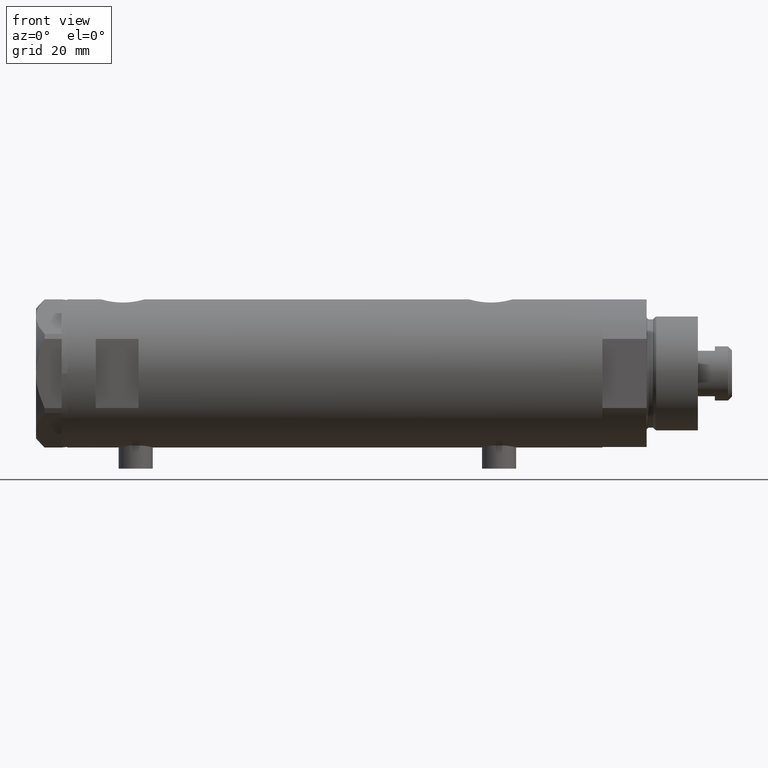
[diagram: clean part render]
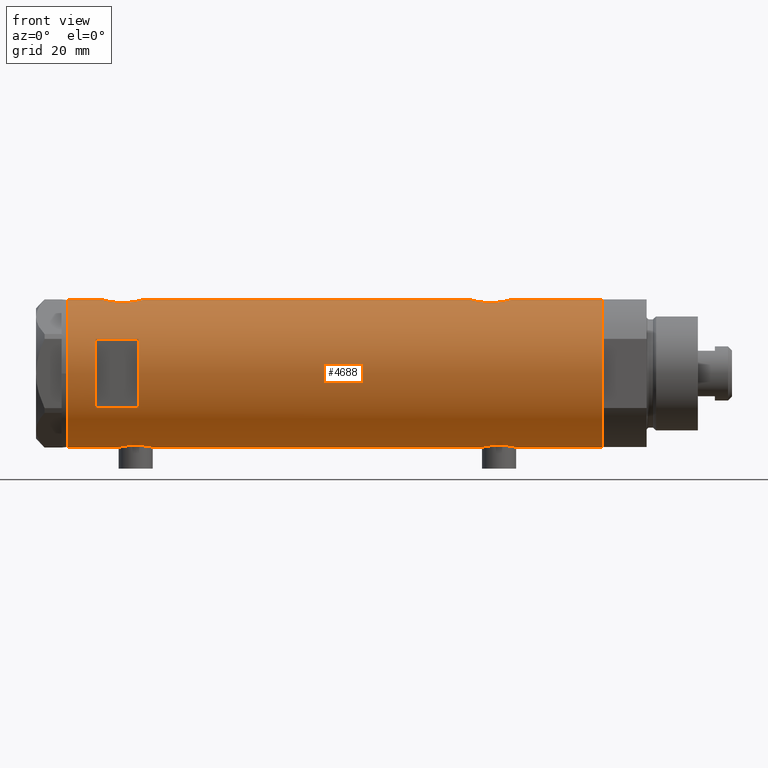
[diagram: same view with one face highlighted and labeled with its STEP entity id]
A machine part, front view. The second image highlights one B-rep face of the part: STEP entity #4688.
In plain terms, the highlighted cylindrical surface (partial cylindrical patch) has radius 26 mm, axis along (-1, -0, 0).
Its self-contained STEP definition (entity closure, byte-faithful):
#10 = EDGE_CURVE ( 'NONE', #3215, #1764, #277, .T. ) ;
#42 = CARTESIAN_POINT ( 'NONE',  ( 0.000000000000000000, 0.000000000000000000, 83.95000000000000284 ) ) ;
#45 = CARTESIAN_POINT ( 'NONE',  ( -25.52274351135604746, -4.960534548086194206, 73.75751745340734544 ) ) ;
#56 = VERTEX_POINT ( 'NONE', #929 ) ;
#70 = CARTESIAN_POINT ( 'NONE',  ( -26.00000000000000355, -8.503928565788675107E-16, -51.39999999999999858 ) ) ;
#90 = CARTESIAN_POINT ( 'NONE',  ( -26.00000000000000355, 3.184081677783118585E-15, 93.95000000000000284 ) ) ;
#173 = CARTESIAN_POINT ( 'NONE',  ( 24.96672817551788270, -7.257586026187393458, -52.79615800278703119 ) ) ;
#192 = CARTESIAN_POINT ( 'NONE',  ( 25.78993643992928853, -3.329561377902403585, 81.18821560278736627 ) ) ;
#200 = CARTESIAN_POINT ( 'NONE',  ( 25.72873412774685775, -3.768477344985552424, -48.24712539855535454 ) ) ;
#217 = CARTESIAN_POINT ( 'NONE',  ( 25.52449676677459678, -4.953491517965891155, 68.81325508665931068 ) ) ;
#224 = CARTESIAN_POINT ( 'NONE',  ( 25.52449676677459678, -4.953491517965876945, -60.38674491334074190 ) ) ;
#248 = CARTESIAN_POINT ( 'NONE',  ( 25.59500516383205948, -4.575229401795803952, 68.50212244934583339 ) ) ;
#253 = CARTESIAN_POINT ( 'NONE',  ( 25.78993643992928853, -3.329561377902402697, -48.01178439721262947 ) ) ;
#277 = B_SPLINE_CURVE_WITH_KNOTS ( 'NONE', 3,
 ( #342, #3089, #4304, #1519, #5133, #4398, #363, #1199, #1172, #3163, #3535, #4378, #4327, #2351, #1957, #701, #3138, #5156, #4752, #1541, #4703, #414, #1144, #2748, #729, #4804, #3557, #2372, #1566, #3191, #1937, #2300, #3904, #1592, #3979, #1120, #3958, #779, #2400, #2798, #804, #387 ),
 .UNSPECIFIED., .F., .F.,
 ( 4, 2, 2, 2, 2, 2, 2, 2, 2, 2, 2, 2, 2, 2, 2, 2, 2, 2, 2, 2, 4 ),
 ( 0.01961238453869445023, 0.02083783025472770584, 0.02206327597076096492, 0.02267599882877758405, 0.02328872168679420665, 0.02451416740282742757, 0.02573961311886065889, 0.02696505883489389022, 0.02819050455092712501, 0.02880322740894373373, 0.02941595026696033899, 0.03064139598299355643, 0.03186684169902676694, 0.03309228741505997745, 0.03370501027307658271, 0.03431773313109319490, 0.03493045598910980015, 0.03554317884712640541, 0.03676862456315962979, 0.03799407027919285418, 0.03921951599522608550 ),
 .UNSPECIFIED. ) ;
#281 = CARTESIAN_POINT ( 'NONE',  ( 24.89478872726946079, -7.499966281647702182, -54.50178149365218161 ) ) ;
#288 = EDGE_CURVE ( 'NONE', #3318, #640, #1928, .T. ) ;
#298 = CARTESIAN_POINT ( 'NONE',  ( 24.89475831528844907, -7.500067228253129770, 73.95662571746466085 ) ) ;
#308 = DIRECTION ( 'NONE',  ( 0.000000000000000000, 0.000000000000000000, 1.000000000000000000 ) ) ;
#318 = FACE_OUTER_BOUND ( 'NONE', #1875, .T. ) ;
#342 = CARTESIAN_POINT ( 'NONE',  ( -26.00000000000000355, 3.184077527250253257E-15, -63.90000000000001279 ) ) ;
#363 = CARTESIAN_POINT ( 'NONE',  ( -25.85288666140180069, -2.767917424206677968, -63.25742209989670783 ) ) ;
#378 = CARTESIAN_POINT ( 'NONE',  ( -25.81160981652327635, -3.129523010631801494, 64.53607026277929037 ) ) ;
#387 = CARTESIAN_POINT ( 'NONE',  ( -26.00000000000000355, -8.503928565788675107E-16, -51.39999999999999858 ) ) ;
#403 = CARTESIAN_POINT ( 'NONE',  ( -25.95218276861526263, -1.627663810194431404, 63.90149019612397296 ) ) ;
#410 = AXIS2_PLACEMENT_3D ( 'NONE', #42, #1258, #4042 ) ;
#414 = CARTESIAN_POINT ( 'NONE',  ( -25.23758491649666880, -6.250144606721711682, -57.23988300428195686 ) ) ;
#430 = EDGE_CURVE ( 'NONE', #2763, #4208, #1970, .T. ) ;
#431 = CARTESIAN_POINT ( 'NONE',  ( -25.38662204309616399, -5.616507264474307703, 72.72199377719323365 ) ) ;
#449 = CARTESIAN_POINT ( 'NONE',  ( 26.00000000000000355, 0.000000000000000000, -93.95000000000000284 ) ) ;
#454 = CARTESIAN_POINT ( 'NONE',  ( -25.72076778631230098, -3.815670258243490043, 64.98312189468120437 ) ) ;
#458 = CARTESIAN_POINT ( 'NONE',  ( 26.00000000000000355, 0.000000000000000000, 93.95000000000000284 ) ) ;
#505 = AXIS2_PLACEMENT_3D ( 'NONE', #3214, #3984, #4382 ) ;
#556 = CARTESIAN_POINT ( 'NONE',  ( 25.59665538672496155, -4.580438224580676732, -48.79110872287609624 ) ) ;
#578 = CARTESIAN_POINT ( 'NONE',  ( 25.89059789403177447, -2.425642437452259603, 81.56377447242300605 ) ) ;
#581 = ORIENTED_EDGE ( 'NONE', *, *, #966, .F. ) ;
#583 = VECTOR ( 'NONE', #2834, 1000.000000000000000 ) ;
#584 = CARTESIAN_POINT ( 'NONE',  ( 25.98599366666249466, -0.9828433289544072915, -47.29811598276526752 ) ) ;
#601 = CARTESIAN_POINT ( 'NONE',  ( 26.00000000000000355, 0.000000000000000000, -93.95000000000000284 ) ) ;
#612 = CARTESIAN_POINT ( 'NONE',  ( -25.85385060263650914, -2.778671585188189574, 75.56314451304240265 ) ) ;
#640 = VERTEX_POINT ( 'NONE', #4813 ) ;
#656 = CARTESIAN_POINT ( 'NONE',  ( 25.00829008792691965, -7.115081037226463678, 76.87301003740822125 ) ) ;
#662 = CARTESIAN_POINT ( 'NONE',  ( 25.31004928890824957, -5.952041021437452173, -50.18019400116494211 ) ) ;
#683 = CARTESIAN_POINT ( 'NONE',  ( 24.91324908721446008, -7.438459228814657820, 75.44017499374190550 ) ) ;
#684 = EDGE_CURVE ( 'NONE', #640, #56, #4696, .T. ) ;
#701 = CARTESIAN_POINT ( 'NONE',  ( -25.31551596256916170, -5.928819821281962277, -59.67011491904084153 ) ) ;
#707 = CARTESIAN_POINT ( 'NONE',  ( 25.11342038069226845, -6.734617143597199984, 77.78770695790493050 ) ) ;
#709 = ORIENTED_EDGE ( 'NONE', *, *, #430, .F. ) ;
#729 = CARTESIAN_POINT ( 'NONE',  ( -25.31538696791482224, -5.929326713517960812, -55.63203367791898302 ) ) ;
#776 = CARTESIAN_POINT ( 'NONE',  ( 26.00000000000000355, -3.975028449552882818E-20, 81.94999999999998863 ) ) ;
#779 = CARTESIAN_POINT ( 'NONE',  ( -25.92364458890659762, -2.026637113504532905, -51.72369009308527410 ) ) ;
#782 = DIRECTION ( 'NONE',  ( 1.000000000000000000, 0.000000000000000000, 0.000000000000000000 ) ) ;
#794 = CARTESIAN_POINT ( 'NONE',  ( -25.52190669608696183, -4.968444991210429151, 66.13658907807516130 ) ) ;
#804 = CARTESIAN_POINT ( 'NONE',  ( -26.00000000000000355, -0.4144764235405725139, -51.39999999999999147 ) ) ;
#819 = CARTESIAN_POINT ( 'NONE',  ( -25.24765475072630139, -6.209883762780004091, 70.76678184355101564 ) ) ;
#821 = EDGE_CURVE ( 'NONE', #2577, #1086, #3909, .T. ) ;
#835 = VECTOR ( 'NONE', #1068, 1000.000000000000000 ) ;
#876 = VECTOR ( 'NONE', #4142, 1000.000000000000000 ) ;
#916 = VECTOR ( 'NONE', #4828, 1000.000000000000000 ) ;
#921 = CARTESIAN_POINT ( 'NONE',  ( 26.00000000000000355, 0.000000000000000000, -93.95000000000000284 ) ) ;
#924 = CARTESIAN_POINT ( 'NONE',  ( -25.57167894663063024, -4.701762988462085069, 74.07280450192421029 ) ) ;
#929 = CARTESIAN_POINT ( 'NONE',  ( -12.12435565298214080, -23.00000000000000355, 83.95000000000000284 ) ) ;
#966 = EDGE_CURVE ( 'NONE', #2466, #4871, #4467, .T. ) ;
#972 = CARTESIAN_POINT ( 'NONE',  ( 25.38109653984943748, -5.641393955635659374, -49.80180907551250158 ) ) ;
#996 = VERTEX_POINT ( 'NONE', #2732 ) ;
#1021 = CARTESIAN_POINT ( 'NONE',  ( -12.12435565298214080, -23.00000000000000355, 68.94999999999998863 ) ) ;
#1023 = CARTESIAN_POINT ( 'NONE',  ( 25.62983961939740496, -4.376509667782460866, 68.35441500957041683 ) ) ;
#1036 = CARTESIAN_POINT ( 'NONE',  ( 26.00000000000000355, -3.975025925197986111E-20, -47.25000000000000000 ) ) ;
#1043 = ORIENTED_EDGE ( 'NONE', *, *, #3358, .F. ) ;
#1044 = CARTESIAN_POINT ( 'NONE',  ( 25.48871066912673911, -5.133852125086511897, 68.97709693256024366 ) ) ;
#1046 = VECTOR ( 'NONE', #2538, 1000.000000000000000 ) ;
#1068 = DIRECTION ( 'NONE',  ( 0.000000000000000000, 0.000000000000000000, 1.000000000000000000 ) ) ;
#1086 = VERTEX_POINT ( 'NONE', #2382 ) ;
#1104 = EDGE_CURVE ( 'NONE', #996, #3020, #1837, .T. ) ;
#1120 = CARTESIAN_POINT ( 'NONE',  ( -25.81232680456766815, -3.137210741985122286, -52.22886342778421209 ) ) ;
#1144 = CARTESIAN_POINT ( 'NONE',  ( -25.24765475072630139, -6.209883762780014749, -56.83321815644903552 ) ) ;
#1172 = CARTESIAN_POINT ( 'NONE',  ( -25.78943824387522454, -3.306687742228910487, -62.95754138783468790 ) ) ;
#1191 = CARTESIAN_POINT ( 'NONE',  ( -25.25025691038242215, -6.198787452305312584, 69.12558834604207902 ) ) ;
#1195 = CARTESIAN_POINT ( 'NONE',  ( 25.11243836838846022, -6.738202653785830165, 71.12043350844841427 ) ) ;
#1199 = CARTESIAN_POINT ( 'NONE',  ( -25.81160981652327635, -3.129523010631801938, -63.06392973722074657 ) ) ;
#1211 = CARTESIAN_POINT ( 'NONE',  ( -25.23763877699557412, -6.249927116972443741, 69.74164472334535958 ) ) ;
#1239 = VECTOR ( 'NONE', #308, 1000.000000000000000 ) ;
#1249 = LINE ( 'NONE', #2060, #916 ) ;
#1258 = DIRECTION ( 'NONE',  ( -0.000000000000000000, 0.000000000000000000, -1.000000000000000000 ) ) ;
#1259 = EDGE_CURVE ( 'NONE', #2577, #2739, #4436, .T. ) ;
#1288 = CARTESIAN_POINT ( 'NONE',  ( -25.99036913299955742, -0.8159609457881448202, 63.73968856968108554 ) ) ;
#1347 = CARTESIAN_POINT ( 'NONE',  ( 24.89475831528845262, -7.500067228253130658, -55.24337428253536331 ) ) ;
#1355 = CARTESIAN_POINT ( 'NONE',  ( 0.000000000000000000, 0.000000000000000000, 93.95000000000000284 ) ) ;
#1391 = VERTEX_POINT ( 'NONE', #1021 ) ;
#1395 = CARTESIAN_POINT ( 'NONE',  ( 24.96970063328116751, -7.247045583599693863, -56.69719214854801947 ) ) ;
#1436 = ORIENTED_EDGE ( 'NONE', *, *, #1654, .F. ) ;
#1496 = CARTESIAN_POINT ( 'NONE',  ( 24.96970063328117462, -7.247045583599690310, 72.50280785145199047 ) ) ;
#1519 = CARTESIAN_POINT ( 'NONE',  ( -25.95218276861526618, -1.627663810194431626, -63.69850980387604977 ) ) ;
#1531 = CARTESIAN_POINT ( 'NONE',  ( 26.00000000000000355, 3.343657407582877388E-16, -62.25000000000000000 ) ) ;
#1541 = CARTESIAN_POINT ( 'NONE',  ( -25.24022290516698419, -6.239518219915434649, -58.06597215938433720 ) ) ;
#1551 = CARTESIAN_POINT ( 'NONE',  ( -26.00000000000000355, 1.227111019500118713E-15, 76.20000000000001705 ) ) ;
#1562 = EDGE_CURVE ( 'NONE', #1391, #3318, #4018, .T. ) ;
#1566 = CARTESIAN_POINT ( 'NONE',  ( -25.52274351135604391, -4.960534548086211970, -53.84248254659268440 ) ) ;
#1580 = CARTESIAN_POINT ( 'NONE',  ( -25.31551596256916525, -5.928819821281963165, 67.92988508095919542 ) ) ;
#1587 = CARTESIAN_POINT ( 'NONE',  ( 25.78902964777117290, -3.336582972512956768, 67.71524159542266830 ) ) ;
#1592 = CARTESIAN_POINT ( 'NONE',  ( -25.71926338401910428, -3.813768894920914754, -52.69427860166185695 ) ) ;
#1606 = CARTESIAN_POINT ( 'NONE',  ( -25.23758491649666524, -6.250144606721703688, 70.36011699571805877 ) ) ;
#1654 = EDGE_CURVE ( 'NONE', #1764, #2763, #1249, .T. ) ;
#1657 = CARTESIAN_POINT ( 'NONE',  ( -25.87202607293667000, -2.583404329177993120, 64.25526333145488422 ) ) ;
#1711 = CARTESIAN_POINT ( 'NONE',  ( -25.59645788645699227, -4.565358797148518555, 74.22330529203480864 ) ) ;
#1764 = VERTEX_POINT ( 'NONE', #70 ) ;
#1766 = CARTESIAN_POINT ( 'NONE',  ( 24.90947356773249766, -7.451722770779341865, -55.73190841828151321 ) ) ;
#1767 = CARTESIAN_POINT ( 'NONE',  ( -25.99999999999999289, -0.4144764235405741237, 76.19999999999998863 ) ) ;
#1789 = CARTESIAN_POINT ( 'NONE',  ( 25.27534302296961854, -6.097250460344746159, -50.37590386902925843 ) ) ;
#1808 = CARTESIAN_POINT ( 'NONE',  ( 26.00000000000000355, -2.747580718823405516E-15, 66.95000000000000284 ) ) ;
#1815 = CARTESIAN_POINT ( 'NONE',  ( 25.88994451797511331, -2.432613607265599498, -61.86140968713201005 ) ) ;
#1836 = CARTESIAN_POINT ( 'NONE',  ( 25.72912156655466376, -3.765948295762494791, 67.94557024600780437 ) ) ;
#1837 = CIRCLE ( 'NONE', #3257, 26.00000000000000355 ) ;
#1844 = CARTESIAN_POINT ( 'NONE',  ( 25.17393786935995692, -6.507882790539420981, -58.51037333344031310 ) ) ;
#1875 = EDGE_LOOP ( 'NONE', ( #1043, #2675, #2036, #581, #2440, #5031, #4964, #3689, #2540, #709, #1436, #4692 ) ) ;
#1914 = FACE_BOUND ( 'NONE', #5118, .T. ) ;
#1917 = CARTESIAN_POINT ( 'NONE',  ( 25.31004928890825312, -5.952041021437449508, 79.01980599883506784 ) ) ;
#1928 = LINE ( 'NONE', #3155, #1239 ) ;
#1937 = CARTESIAN_POINT ( 'NONE',  ( -25.59645788645699582, -4.565358797148525660, -53.37669470796521409 ) ) ;
#1957 = CARTESIAN_POINT ( 'NONE',  ( -25.38744165544137488, -5.612847683295917989, -60.42987583238479488 ) ) ;
#1970 = B_SPLINE_CURVE_WITH_KNOTS ( 'NONE', 3,
 ( #3996, #2076, #1288, #403, #4846, #1657, #3972, #378, #1973, #454, #3573, #4415, #794, #5196, #3648, #1580, #3183, #4796, #1191, #2791, #1211, #1606, #819, #2417, #4021, #431, #2025, #3623, #45, #924, #1711, #2523, #2210, #2947, #3365, #3809, #612, #2604, #4532, #2156, #1767, #4100 ),
 .UNSPECIFIED., .F., .F.,
 ( 4, 2, 2, 2, 2, 2, 2, 2, 2, 2, 2, 2, 2, 2, 2, 2, 2, 2, 2, 2, 4 ),
 ( 0.01961238453869444676, 0.02083783025472769543, 0.02206327597076094410, 0.02267599882877755976, 0.02328872168679417543, 0.02451416740282743104, 0.02573961311886067971, 0.02696505883489393532, 0.02819050455092719093, 0.02880322740894379618, 0.02941595026696040144, 0.03064139598299361195, 0.03186684169902682245, 0.03309228741506003296, 0.03370501027307663822, 0.03431773313109324347, 0.03493045598910984872, 0.03554317884712646092, 0.03676862456315967143, 0.03799407027919288193, 0.03921951599522609938 ),
 .UNSPECIFIED. ) ;
#1973 = CARTESIAN_POINT ( 'NONE',  ( -25.78943824387523520, -3.306687742228914484, 64.64245861216537037 ) ) ;
#2008 = EDGE_CURVE ( 'NONE', #4208, #4309, #3636, .T. ) ;
#2022 = ORIENTED_EDGE ( 'NONE', *, *, #684, .F. ) ;
#2025 = CARTESIAN_POINT ( 'NONE',  ( -25.42883439573799720, -5.424786127492320809, 73.08081457260909986 ) ) ;
#2036 = ORIENTED_EDGE ( 'NONE', *, *, #4778, .T. ) ;
#2060 = CARTESIAN_POINT ( 'NONE',  ( -26.00000000000000355, 3.184081677783118585E-15, -93.95000000000000284 ) ) ;
#2076 = CARTESIAN_POINT ( 'NONE',  ( -26.00000000000001066, -0.4086738135806035066, 63.70000000000000995 ) ) ;
#2077 = ORIENTED_EDGE ( 'NONE', *, *, #288, .F. ) ;
#2154 = CARTESIAN_POINT ( 'NONE',  ( 25.00829008792691255, -7.115081037226466343, -52.32698996259181001 ) ) ;
#2156 = CARTESIAN_POINT ( 'NONE',  ( -25.99009752186832856, -0.8230863847107351416, 76.15917071406683192 ) ) ;
#2209 = CARTESIAN_POINT ( 'NONE',  ( 25.30930190055640239, -5.959775463244125326, -59.32974043478028392 ) ) ;
#2210 = CARTESIAN_POINT ( 'NONE',  ( -25.67063510297210271, -4.128418051804843003, 74.64682575271267240 ) ) ;
#2226 = CARTESIAN_POINT ( 'NONE',  ( 24.96672817551789691, -7.257586026187390793, 76.40384199721299296 ) ) ;
#2227 = VECTOR ( 'NONE', #2521, 1000.000000000000000 ) ;
#2232 = LINE ( 'NONE', #921, #2227 ) ;
#2257 = CARTESIAN_POINT ( 'NONE',  ( 25.03461301890608226, -7.019803056070506031, 71.79816816893104203 ) ) ;
#2261 = CARTESIAN_POINT ( 'NONE',  ( 26.00000000000000355, 0.000000000000000000, -93.95000000000000284 ) ) ;
#2264 = CARTESIAN_POINT ( 'NONE',  ( 25.17510548814053095, -6.503212750695464450, -50.98238212184652696 ) ) ;
#2300 = CARTESIAN_POINT ( 'NONE',  ( -25.64593536028936782, -4.278686337618967883, -53.08968397039122777 ) ) ;
#2307 = CARTESIAN_POINT ( 'NONE',  ( 24.90947356773250121, -7.451722770779340088, 73.46809158171848253 ) ) ;
#2319 = ORIENTED_EDGE ( 'NONE', *, *, #1562, .F. ) ;
#2351 = CARTESIAN_POINT ( 'NONE',  ( -25.42977453177915592, -5.420307583276862573, -60.78812271793365340 ) ) ;
#2372 = CARTESIAN_POINT ( 'NONE',  ( -25.49846181844014126, -5.083495422175140277, -54.00822496617402635 ) ) ;
#2382 = CARTESIAN_POINT ( 'NONE',  ( 26.00000000000000355, -2.747580718823405516E-15, 66.95000000000000284 ) ) ;
#2400 = CARTESIAN_POINT ( 'NONE',  ( -25.95206678899177888, -1.628763264760264118, -51.60199186669784410 ) ) ;
#2417 = CARTESIAN_POINT ( 'NONE',  ( -25.28632996747172967, -6.050474653715409268, 71.56911870841541656 ) ) ;
#2440 = ORIENTED_EDGE ( 'NONE', *, *, #4476, .T. ) ;
#2466 = VERTEX_POINT ( 'NONE', #1036 ) ;
#2521 = DIRECTION ( 'NONE',  ( 0.000000000000000000, 0.000000000000000000, 1.000000000000000000 ) ) ;
#2523 = CARTESIAN_POINT ( 'NONE',  ( -25.64593536028936427, -4.278686337618962554, 74.51031602960878786 ) ) ;
#2531 = EDGE_CURVE ( 'NONE', #4309, #2739, #2772, .T. ) ;
#2538 = DIRECTION ( 'NONE',  ( 0.000000000000000000, 0.000000000000000000, 1.000000000000000000 ) ) ;
#2540 = ORIENTED_EDGE ( 'NONE', *, *, #2008, .F. ) ;
#2565 = CARTESIAN_POINT ( 'NONE',  ( 25.98599366666249466, -0.9828433289544105111, 81.90188401723473532 ) ) ;
#2573 = CARTESIAN_POINT ( 'NONE',  ( 24.91324908721445652, -7.438459228814655155, -53.75982500625809024 ) ) ;
#2577 = VERTEX_POINT ( 'NONE', #776 ) ;
#2603 = CARTESIAN_POINT ( 'NONE',  ( 24.89854802586676286, -7.487520416261737921, -54.25184316422095065 ) ) ;
#2604 = CARTESIAN_POINT ( 'NONE',  ( -25.92364458890660472, -2.026637113504541343, 75.87630990691478416 ) ) ;
#2630 = CARTESIAN_POINT ( 'NONE',  ( 25.48871066912673200, -5.133852125086511009, -60.22290306743978050 ) ) ;
#2675 = ORIENTED_EDGE ( 'NONE', *, *, #1104, .T. ) ;
#2676 = CARTESIAN_POINT ( 'NONE',  ( 25.93098857934040069, -1.953835360821276623, 67.19226335297439334 ) ) ;
#2697 = LINE ( 'NONE', #3905, #3271 ) ;
#2702 = CARTESIAN_POINT ( 'NONE',  ( 24.92415241886516952, -7.401968919186677986, 75.68323537444817362 ) ) ;
#2732 = CARTESIAN_POINT ( 'NONE',  ( -26.00000000000000355, 3.184081677783118585E-15, -93.95000000000000284 ) ) ;
#2739 = VERTEX_POINT ( 'NONE', #458 ) ;
#2748 = CARTESIAN_POINT ( 'NONE',  ( -25.28632996747171546, -6.050474653715422590, -56.03088129158463460 ) ) ;
#2763 = VERTEX_POINT ( 'NONE', #4395 ) ;
#2772 = CIRCLE ( 'NONE', #4445, 26.00000000000000355 ) ;
#2791 = CARTESIAN_POINT ( 'NONE',  ( -25.24022290516698774, -6.239518219915429320, 69.53402784061570685 ) ) ;
#2795 = CARTESIAN_POINT ( 'NONE',  ( 25.38125492692910967, -5.649348210287292282, 69.49305665653604080 ) ) ;
#2798 = CARTESIAN_POINT ( 'NONE',  ( -25.99009752186833211, -0.8230863847107499076, -51.44082928593319082 ) ) ;
#2834 = DIRECTION ( 'NONE',  ( 0.000000000000000000, 0.000000000000000000, 1.000000000000000000 ) ) ;
#2947 = CARTESIAN_POINT ( 'NONE',  ( -25.71926338401910073, -3.813768894920909425, 74.90572139833817289 ) ) ;
#2963 = CARTESIAN_POINT ( 'NONE',  ( 26.00000000000001066, -0.4910237949823165748, 81.95000000000001705 ) ) ;
#2996 = CARTESIAN_POINT ( 'NONE',  ( 25.11342038069227200, -6.734617143597207978, -51.41229304209507234 ) ) ;
#3020 = VERTEX_POINT ( 'NONE', #2261 ) ;
#3024 = CARTESIAN_POINT ( 'NONE',  ( 25.98569226047905190, -0.9886551788957271825, -62.20082376600176133 ) ) ;
#3049 = CARTESIAN_POINT ( 'NONE',  ( 25.59500516383205593, -4.575229401795787965, -60.69787755065421919 ) ) ;
#3089 = CARTESIAN_POINT ( 'NONE',  ( -26.00000000000000711, -0.4086738135806026739, -63.90000000000002700 ) ) ;
#3095 = CARTESIAN_POINT ( 'NONE',  ( 25.41756773306325101, -5.475260495868973898, 79.58140873656945757 ) ) ;
#3138 = CARTESIAN_POINT ( 'NONE',  ( -25.28680988956729436, -6.048472998962281189, -59.27627694188244334 ) ) ;
#3155 = CARTESIAN_POINT ( 'NONE',  ( 12.12435565298214080, -23.00000000000000355, -93.95000000000000284 ) ) ;
#3163 = CARTESIAN_POINT ( 'NONE',  ( -25.72076778631230454, -3.815670258243488266, -62.61687810531882548 ) ) ;
#3183 = CARTESIAN_POINT ( 'NONE',  ( -25.28680988956730147, -6.048472998962280300, 68.32372305811757940 ) ) ;
#3188 = CARTESIAN_POINT ( 'NONE',  ( 25.98569226047905900, -0.9886551788957337328, 66.99917623399824151 ) ) ;
#3191 = CARTESIAN_POINT ( 'NONE',  ( -25.57167894663062668, -4.701762988462101056, -53.52719549807584087 ) ) ;
#3214 = CARTESIAN_POINT ( 'NONE',  ( 0.000000000000000000, 0.000000000000000000, 68.95000000000008811 ) ) ;
#3215 = VERTEX_POINT ( 'NONE', #3695 ) ;
#3257 = AXIS2_PLACEMENT_3D ( 'NONE', #4764, #4388, #4315 ) ;
#3271 = VECTOR ( 'NONE', #3537, 1000.000000000000000 ) ;
#3318 = VERTEX_POINT ( 'NONE', #4246 ) ;
#3355 = CARTESIAN_POINT ( 'NONE',  ( 26.00000000000000355, -3.975028449552882818E-20, 81.94999999999998863 ) ) ;
#3358 = EDGE_CURVE ( 'NONE', #996, #3215, #2697, .T. ) ;
#3365 = CARTESIAN_POINT ( 'NONE',  ( -25.74330903162726258, -3.648508829439215617, 75.02867714715800673 ) ) ;
#3416 = CARTESIAN_POINT ( 'NONE',  ( 25.72912156655465665, -3.765948295762491238, -61.25442975399222689 ) ) ;
#3437 = CARTESIAN_POINT ( 'NONE',  ( 25.59665538672496155, -4.580438224580674067, 80.40889127712388529 ) ) ;
#3443 = CARTESIAN_POINT ( 'NONE',  ( 25.11243836838845667, -6.738202653785825724, -58.07956649155156725 ) ) ;
#3457 = CARTESIAN_POINT ( 'NONE',  ( -26.00000000000000355, 3.184081677783118585E-15, -93.95000000000000284 ) ) ;
#3514 = CARTESIAN_POINT ( 'NONE',  ( 25.27534302296962565, -6.097250460344746159, 78.82409613097077283 ) ) ;
#3535 = CARTESIAN_POINT ( 'NONE',  ( -25.67167563980648737, -4.129238867693854509, -62.35934056431106143 ) ) ;
#3537 = DIRECTION ( 'NONE',  ( 0.000000000000000000, 0.000000000000000000, 1.000000000000000000 ) ) ;
#3557 = CARTESIAN_POINT ( 'NONE',  ( -25.42883439573800430, -5.424786127492344789, -54.51918542739093709 ) ) ;
#3570 = AXIS2_PLACEMENT_3D ( 'NONE', #4381, #5183, #782 ) ;
#3573 = CARTESIAN_POINT ( 'NONE',  ( -25.67167563980648026, -4.129238867693847403, 65.24065943568896841 ) ) ;
#3623 = CARTESIAN_POINT ( 'NONE',  ( -25.49846181844014481, -5.083495422175113632, 73.59177503382601060 ) ) ;
#3636 = LINE ( 'NONE', #3457, #835 ) ;
#3648 = CARTESIAN_POINT ( 'NONE',  ( -25.38744165544136777, -5.612847683295913548, 67.17012416761525628 ) ) ;
#3689 = ORIENTED_EDGE ( 'NONE', *, *, #2531, .F. ) ;
#3695 = CARTESIAN_POINT ( 'NONE',  ( -26.00000000000000355, 3.184077527250253257E-15, -63.90000000000001279 ) ) ;
#3755 = CARTESIAN_POINT ( 'NONE',  ( 26.00000000000000355, -3.975025925197986111E-20, -47.25000000000000000 ) ) ;
#3776 = CARTESIAN_POINT ( 'NONE',  ( 25.72873412774685775, -3.768477344985552424, 80.95287460144460567 ) ) ;
#3793 = DIRECTION ( 'NONE',  ( 1.000000000000000000, 0.000000000000000000, 0.000000000000000000 ) ) ;
#3801 = CARTESIAN_POINT ( 'NONE',  ( 25.17393786935995692, -6.507882790539422757, 70.68962666655967553 ) ) ;
#3807 = CARTESIAN_POINT ( 'NONE',  ( 25.38125492692910612, -5.649348210287294059, -59.70694334346394072 ) ) ;
#3809 = CARTESIAN_POINT ( 'NONE',  ( -25.81232680456766815, -3.137210741985116513, 75.37113657221577512 ) ) ;
#3811 = ORIENTED_EDGE ( 'NONE', *, *, #4448, .F. ) ;
#3857 = CARTESIAN_POINT ( 'NONE',  ( 25.88994451797512397, -2.432613607265604383, 67.33859031286799279 ) ) ;
#3865 = CARTESIAN_POINT ( 'NONE',  ( 24.92415241886515176, -7.401968919186680651, -53.51676462555185054 ) ) ;
#3883 = CARTESIAN_POINT ( 'NONE',  ( 25.17510548814052740, -6.503212750695460009, 78.21761787815347589 ) ) ;
#3904 = CARTESIAN_POINT ( 'NONE',  ( -25.67063510297209916, -4.128418051804850109, -52.95317424728735034 ) ) ;
#3905 = CARTESIAN_POINT ( 'NONE',  ( -26.00000000000000355, 3.184081677783118585E-15, -93.95000000000000284 ) ) ;
#3909 = B_SPLINE_CURVE_WITH_KNOTS ( 'NONE', 3,
 ( #3355, #2963, #2565, #4173, #578, #192, #3776, #3437, #4680, #3095, #4802, #1917, #3514, #3883, #707, #656, #2226, #2702, #683, #4310, #5108, #298, #2307, #3911, #1496, #4653, #2257, #1195, #3801, #4282, #2795, #1044, #217, #248, #1023, #1836, #1587, #3857, #2676, #3188, #5139, #1808 ),
 .UNSPECIFIED., .F., .F.,
 ( 4, 2, 2, 2, 2, 2, 2, 2, 2, 2, 2, 2, 2, 2, 2, 2, 2, 2, 2, 2, 4 ),
 ( 0.02357432247332884312, 0.02504731828495717835, 0.02652031409658551359, 0.02799330990821385229, 0.02946630571984218752, 0.03020280362565635340, 0.03093930153147052275, 0.03241229734309888921, 0.03388529315472726261, 0.03462179106054144584, 0.03535828896635563601, 0.03683128477798400247, 0.03756778268379818569, 0.03830428058961236892, 0.03977727640124074232, 0.04125027221286911572, 0.04198677011868327813, 0.04272326802449745442, 0.04419626383612577231, 0.04566925964775409713, 0.04714225545938241502 ),
 .UNSPECIFIED. ) ;
#3911 = CARTESIAN_POINT ( 'NONE',  ( 24.95200646071794637, -7.307522494171281302, 72.74392435812723079 ) ) ;
#3943 = CARTESIAN_POINT ( 'NONE',  ( 25.99999999999999645, -0.4982617809740603199, -62.24999999999998579 ) ) ;
#3958 = CARTESIAN_POINT ( 'NONE',  ( -25.85385060263651269, -2.778671585188182913, -52.03685548695762719 ) ) ;
#3972 = CARTESIAN_POINT ( 'NONE',  ( -25.85288666140180069, -2.767917424206677524, 64.34257790010329359 ) ) ;
#3979 = CARTESIAN_POINT ( 'NONE',  ( -25.74330903162726614, -3.648508829439221390, -52.57132285284203022 ) ) ;
#3984 = DIRECTION ( 'NONE',  ( -0.000000000000000000, -4.625929269271486900E-15, 1.000000000000000000 ) ) ;
#3996 = CARTESIAN_POINT ( 'NONE',  ( -26.00000000000000355, 3.184077527325983904E-15, 63.70000000000000995 ) ) ;
#4018 = CIRCLE ( 'NONE', #505, 26.00000000000000355 ) ;
#4021 = CARTESIAN_POINT ( 'NONE',  ( -25.31538696791482224, -5.929326713517952818, 71.96796632208102551 ) ) ;
#4042 = DIRECTION ( 'NONE',  ( 1.000000000000000000, 0.000000000000000000, 0.000000000000000000 ) ) ;
#4100 = CARTESIAN_POINT ( 'NONE',  ( -26.00000000000000355, 1.227111019500118713E-15, 76.20000000000001705 ) ) ;
#4142 = DIRECTION ( 'NONE',  ( -0.000000000000000000, -0.000000000000000000, -1.000000000000000000 ) ) ;
#4170 = LINE ( 'NONE', #4626, #876 ) ;
#4173 = CARTESIAN_POINT ( 'NONE',  ( 25.93085545515512891, -1.956676574435511906, 81.70727036830264467 ) ) ;
#4178 = CARTESIAN_POINT ( 'NONE',  ( 25.52567976009756379, -4.956266804246105551, -49.09980072540905383 ) ) ;
#4206 = CARTESIAN_POINT ( 'NONE',  ( 25.03461301890608581, -7.019803056070506031, -57.40183183106895370 ) ) ;
#4208 = VERTEX_POINT ( 'NONE', #1551 ) ;
#4219 = LINE ( 'NONE', #601, #1046 ) ;
#4246 = CARTESIAN_POINT ( 'NONE',  ( 12.12435565298214080, -23.00000000000000355, 68.94999999999998863 ) ) ;
#4260 = CARTESIAN_POINT ( 'NONE',  ( 25.93085545515512891, -1.956676574435509686, -47.49272963169730843 ) ) ;
#4282 = CARTESIAN_POINT ( 'NONE',  ( 25.30930190055639528, -5.959775463244125326, 69.87025956521972603 ) ) ;
#4304 = CARTESIAN_POINT ( 'NONE',  ( -25.99036913299956097, -0.8159609457881454864, -63.86031143031890878 ) ) ;
#4309 = VERTEX_POINT ( 'NONE', #90 ) ;
#4310 = CARTESIAN_POINT ( 'NONE',  ( 24.89854802586675575, -7.487520416261734368, 74.94815683577905929 ) ) ;
#4315 = DIRECTION ( 'NONE',  ( 1.000000000000000000, 0.000000000000000000, 0.000000000000000000 ) ) ;
#4327 = CARTESIAN_POINT ( 'NONE',  ( -25.52190669608696183, -4.968444991210430040, -61.46341092192486144 ) ) ;
#4331 = CYLINDRICAL_SURFACE ( 'NONE', #3570, 26.00000000000000355 ) ;
#4378 = CARTESIAN_POINT ( 'NONE',  ( -25.57228991600092627, -4.705691472451703383, -61.78339690124654027 ) ) ;
#4381 = CARTESIAN_POINT ( 'NONE',  ( 0.000000000000000000, 0.000000000000000000, -93.95000000000000284 ) ) ;
#4382 = DIRECTION ( 'NONE',  ( 1.776356839400250465E-15, 1.000000000000000000, 4.803849625781927035E-15 ) ) ;
#4388 = DIRECTION ( 'NONE',  ( 0.000000000000000000, 0.000000000000000000, 1.000000000000000000 ) ) ;
#4395 = CARTESIAN_POINT ( 'NONE',  ( -26.00000000000000355, 3.184077527325983904E-15, 63.70000000000000995 ) ) ;
#4398 = CARTESIAN_POINT ( 'NONE',  ( -25.87202607293667000, -2.583404329177994008, -63.34473666854513141 ) ) ;
#4415 = CARTESIAN_POINT ( 'NONE',  ( -25.57228991600092272, -4.705691472451695390, 65.81660309875348958 ) ) ;
#4436 = LINE ( 'NONE', #449, #583 ) ;
#4445 = AXIS2_PLACEMENT_3D ( 'NONE', #1355, #4563, #3793 ) ;
#4448 = EDGE_CURVE ( 'NONE', #56, #1391, #4170, .T. ) ;
#4467 = B_SPLINE_CURVE_WITH_KNOTS ( 'NONE', 3,
 ( #3755, #4578, #584, #4260, #4952, #253, #200, #556, #4178, #4636, #972, #662, #1789, #2264, #2996, #2154, #173, #3865, #2573, #2603, #281, #1347, #1766, #5002, #1395, #4605, #4206, #3443, #1844, #2209, #3807, #2630, #224, #3049, #4660, #3416, #5066, #1815, #5034, #3024, #3943, #1531 ),
 .UNSPECIFIED., .F., .F.,
 ( 4, 2, 2, 2, 2, 2, 2, 2, 2, 2, 2, 2, 2, 2, 2, 2, 2, 2, 2, 2, 4 ),
 ( 0.02357432247332888128, 0.02504731828495719570, 0.02652031409658551359, 0.02799330990821382800, 0.02946630571984214589, 0.03020280362565630136, 0.03093930153147046030, 0.03241229734309879207, 0.03388529315472712383, 0.03462179106054129318, 0.03535828896635545560, 0.03683128477798380818, 0.03756778268379799834, 0.03830428058961218157, 0.03977727640124056885, 0.04125027221286896306, 0.04198677011868315323, 0.04272326802449734340, 0.04419626383612573067, 0.04566925964775411795, 0.04714225545938250522 ),
 .UNSPECIFIED. ) ;
#4476 = EDGE_CURVE ( 'NONE', #2466, #1086, #4219, .T. ) ;
#4532 = CARTESIAN_POINT ( 'NONE',  ( -25.95206678899177888, -1.628763264760248353, 75.99800813330216442 ) ) ;
#4557 = CARTESIAN_POINT ( 'NONE',  ( 26.00000000000000355, 3.343657407582877388E-16, -62.25000000000000000 ) ) ;
#4563 = DIRECTION ( 'NONE',  ( 0.000000000000000000, 0.000000000000000000, 1.000000000000000000 ) ) ;
#4578 = CARTESIAN_POINT ( 'NONE',  ( 26.00000000000001066, -0.4910237949823163528, -47.25000000000001421 ) ) ;
#4605 = CARTESIAN_POINT ( 'NONE',  ( 25.01107424167501136, -7.102941973849614676, -57.17062848662576613 ) ) ;
#4626 = CARTESIAN_POINT ( 'NONE',  ( -12.12435565298214080, -23.00000000000000355, -93.95000000000000284 ) ) ;
#4636 = CARTESIAN_POINT ( 'NONE',  ( 25.41756773306326522, -5.475260495868973898, -49.61859126343051685 ) ) ;
#4653 = CARTESIAN_POINT ( 'NONE',  ( 25.01107424167501136, -7.102941973849612012, 72.02937151337422961 ) ) ;
#4660 = CARTESIAN_POINT ( 'NONE',  ( 25.62983961939740141, -4.376509667782454649, -60.84558499042960733 ) ) ;
#4680 = CARTESIAN_POINT ( 'NONE',  ( 25.52567976009756379, -4.956266804246106439, 80.10019927459092060 ) ) ;
#4688 = ADVANCED_FACE ( 'NONE', ( #318, #1914 ), #4331, .T. ) ;
#4692 = ORIENTED_EDGE ( 'NONE', *, *, #10, .F. ) ;
#4696 = CIRCLE ( 'NONE', #410, 26.00000000000000355 ) ;
#4703 = CARTESIAN_POINT ( 'NONE',  ( -25.23763877699556701, -6.249927116972449070, -57.85835527665467026 ) ) ;
#4752 = CARTESIAN_POINT ( 'NONE',  ( -25.25025691038241860, -6.198787452305317025, -58.47441165395796503 ) ) ;
#4764 = CARTESIAN_POINT ( 'NONE',  ( 0.000000000000000000, 0.000000000000000000, -93.95000000000000284 ) ) ;
#4778 = EDGE_CURVE ( 'NONE', #3020, #4871, #2232, .T. ) ;
#4796 = CARTESIAN_POINT ( 'NONE',  ( -25.25769689814630325, -6.168504065326069430, 68.92353364703252794 ) ) ;
#4802 = CARTESIAN_POINT ( 'NONE',  ( 25.38109653984943748, -5.641393955635657598, 79.39819092448753679 ) ) ;
#4804 = CARTESIAN_POINT ( 'NONE',  ( -25.38662204309616754, -5.616507264474315697, -54.87800622280676777 ) ) ;
#4813 = CARTESIAN_POINT ( 'NONE',  ( 12.12435565298214080, -23.00000000000000355, 83.95000000000000284 ) ) ;
#4828 = DIRECTION ( 'NONE',  ( 0.000000000000000000, 0.000000000000000000, 1.000000000000000000 ) ) ;
#4846 = CARTESIAN_POINT ( 'NONE',  ( -25.92425332714051933, -2.018894156999441858, 64.02103879324673130 ) ) ;
#4871 = VERTEX_POINT ( 'NONE', #4557 ) ;
#4952 = CARTESIAN_POINT ( 'NONE',  ( 25.89059789403177447, -2.425642437452257383, -47.63622552757698969 ) ) ;
#4964 = ORIENTED_EDGE ( 'NONE', *, *, #1259, .T. ) ;
#5002 = CARTESIAN_POINT ( 'NONE',  ( 24.95200646071794282, -7.307522494171283967, -56.45607564187280758 ) ) ;
#5031 = ORIENTED_EDGE ( 'NONE', *, *, #821, .F. ) ;
#5034 = CARTESIAN_POINT ( 'NONE',  ( 25.93098857934040424, -1.953835360821274847, -62.00773664702559529 ) ) ;
#5066 = CARTESIAN_POINT ( 'NONE',  ( 25.78902964777116935, -3.336582972512946554, -61.48475840457738428 ) ) ;
#5108 = CARTESIAN_POINT ( 'NONE',  ( 24.89478872726945724, -7.499966281647698629, 74.69821850634782834 ) ) ;
#5118 = EDGE_LOOP ( 'NONE', ( #2319, #3811, #2022, #2077 ) ) ;
#5133 = CARTESIAN_POINT ( 'NONE',  ( -25.92425332714051223, -2.018894156999442746, -63.57896120675329854 ) ) ;
#5139 = CARTESIAN_POINT ( 'NONE',  ( 26.00000000000000711, -0.4982617809740558790, 66.95000000000001705 ) ) ;
#5156 = CARTESIAN_POINT ( 'NONE',  ( -25.25769689814629970, -6.168504065326076535, -58.67646635296745927 ) ) ;
#5183 = DIRECTION ( 'NONE',  ( 0.000000000000000000, 0.000000000000000000, 1.000000000000000000 ) ) ;
#5196 = CARTESIAN_POINT ( 'NONE',  ( -25.42977453177915592, -5.420307583276858132, 66.81187728206637644 ) ) ;